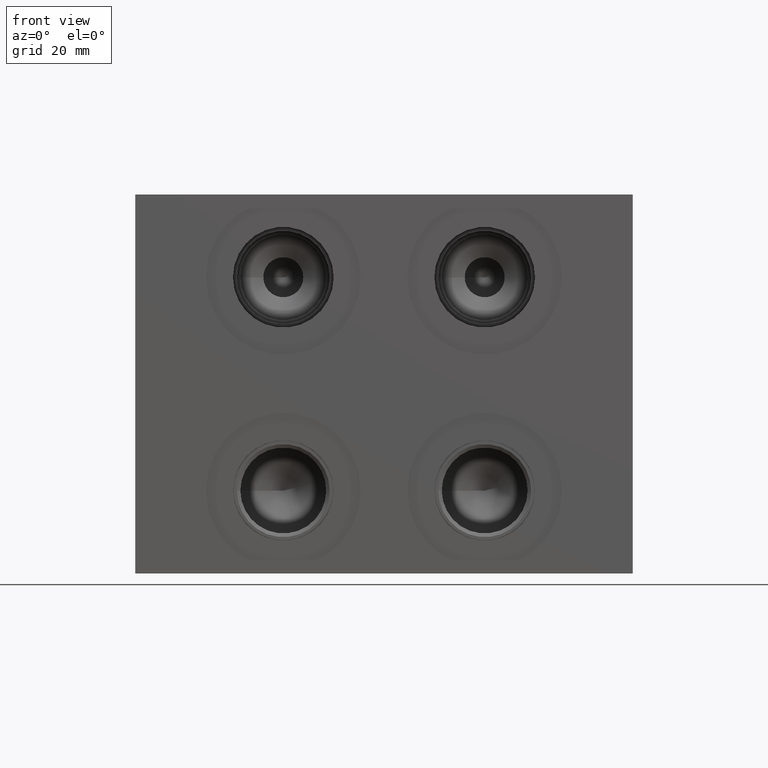
[diagram: clean part render]
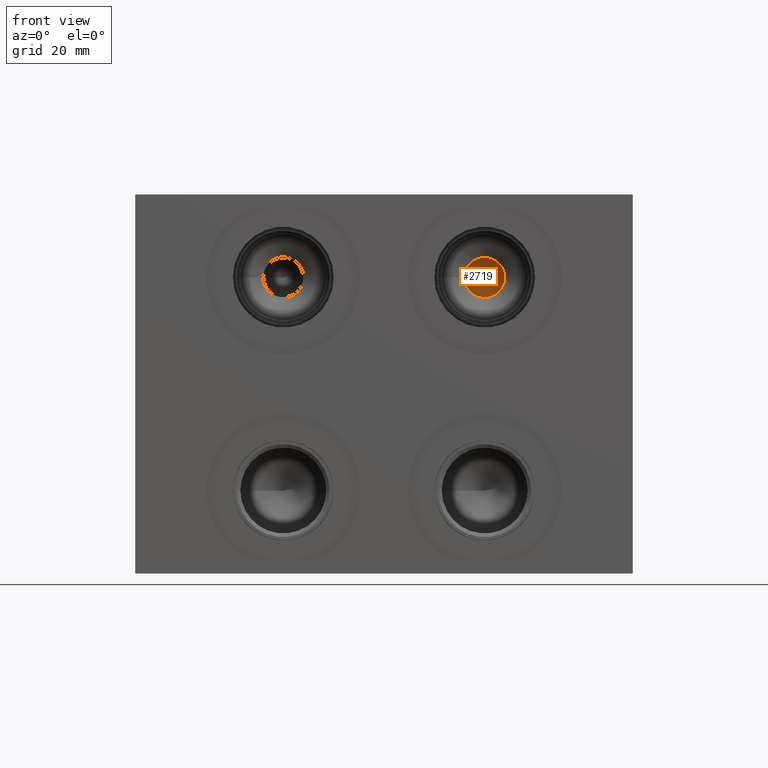
[diagram: same view with one face highlighted and labeled with its STEP entity id]
A machine part, front view. The second image highlights one B-rep face of the part: STEP entity #2719.
In plain terms, the highlighted conical surface has half-angle 60 deg.
Its self-contained STEP definition (entity closure, byte-faithful):
#269=FACE_OUTER_BOUND('',#445,.T.);
#445=EDGE_LOOP('',(#2132,#2133,#2134,#2135));
#633=LINE('',#4608,#761);
#761=VECTOR('',#3681,2.6797);
#954=CIRCLE('',#3009,5.3594);
#955=CIRCLE('',#3010,5.3594);
#1235=VERTEX_POINT('',#4604);
#1236=VERTEX_POINT('',#4605);
#1237=VERTEX_POINT('',#4607);
#1584=EDGE_CURVE('',#1235,#1236,#954,.T.);
#1585=EDGE_CURVE('',#1236,#1237,#633,.T.);
#1586=EDGE_CURVE('',#1236,#1235,#955,.T.);
#2132=ORIENTED_EDGE('',*,*,#1584,.T.);
#2133=ORIENTED_EDGE('',*,*,#1585,.T.);
#2134=ORIENTED_EDGE('',*,*,#1585,.F.);
#2135=ORIENTED_EDGE('',*,*,#1586,.T.);
#2626=CONICAL_SURFACE('',#3008,2.6797,1.0471975511966);
#2719=ADVANCED_FACE('',(#269),#2626,.F.);
#3008=AXIS2_PLACEMENT_3D('',#4603,#3677,#3678);
#3009=AXIS2_PLACEMENT_3D('',#4606,#3679,#3680);
#3010=AXIS2_PLACEMENT_3D('',#4609,#3682,#3683);
#3677=DIRECTION('center_axis',(0.,-1.,0.));
#3678=DIRECTION('ref_axis',(1.,0.,0.));
#3679=DIRECTION('center_axis',(0.,-1.,0.));
#3680=DIRECTION('ref_axis',(1.,0.,0.));
#3681=DIRECTION('',(0.866025403784439,0.5,1.06057523872491E-16));
#3682=DIRECTION('center_axis',(0.,-1.,0.));
#3683=DIRECTION('ref_axis',(1.,0.,0.));
#4603=CARTESIAN_POINT('Origin',(93.6498,55.7299555163474,79.375));
#4604=CARTESIAN_POINT('',(99.0092,54.18283,79.375));
#4605=CARTESIAN_POINT('',(88.2904,54.18283,79.375));
#4606=CARTESIAN_POINT('Origin',(93.6498,54.18283,79.375));
#4607=CARTESIAN_POINT('',(93.6498,57.2770810326949,79.375));
#4608=CARTESIAN_POINT('',(90.9701,55.7299555163474,79.375));
#4609=CARTESIAN_POINT('Origin',(93.6498,54.18283,79.375));